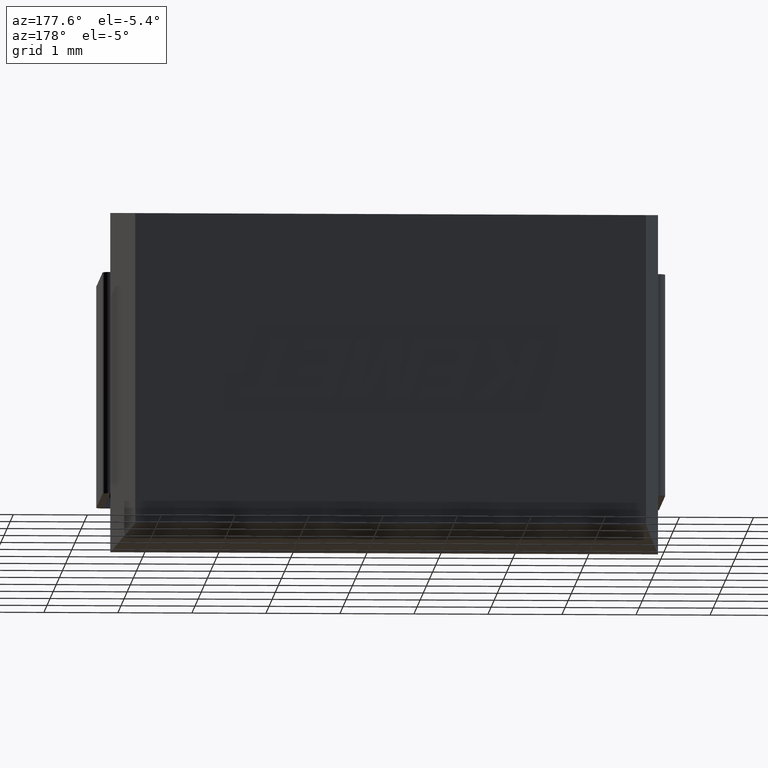
[diagram: clean part render]
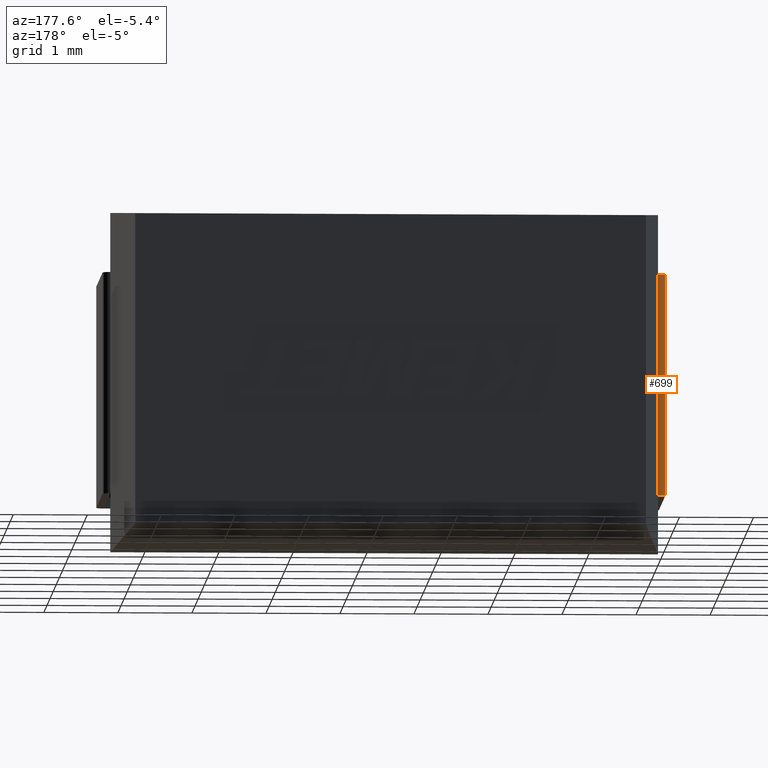
[diagram: same view with one face highlighted and labeled with its STEP entity id]
A machine part, auxiliary view. The second image highlights one B-rep face of the part: STEP entity #699.
In plain terms, the highlighted cylindrical surface (edge-blend (fillet) strip) has radius 0.1 mm, axis along (0, 0, 1).
Its self-contained STEP definition (entity closure, byte-faithful):
#13 = EDGE_CURVE ( 'NONE', #843, #1848, #3395, .T. ) ;
#131 = DIRECTION ( 'NONE',  ( 1.000000000000000000, 0.000000000000000000, 0.000000000000000000 ) ) ;
#149 = CIRCLE ( 'NONE', #2612, 0.1000000000000000056 ) ;
#180 = ORIENTED_EDGE ( 'NONE', *, *, #13, .F. ) ;
#445 = ORIENTED_EDGE ( 'NONE', *, *, #1961, .F. ) ;
#447 = CARTESIAN_POINT ( 'NONE',  ( -0.0009999999999999891788, 1.999999999999997780, -0.7999999999999999334 ) ) ;
#471 = VERTEX_POINT ( 'NONE', #3686 ) ;
#519 = VECTOR ( 'NONE', #4221, 1000.000000000000000 ) ;
#574 = DIRECTION ( 'NONE',  ( 1.000000000000000000, 0.000000000000000000, 0.000000000000000000 ) ) ;
#699 = ADVANCED_FACE ( 'NONE', ( #3306 ), #2287, .T. ) ;
#843 = VERTEX_POINT ( 'NONE', #2170 ) ;
#978 = EDGE_LOOP ( 'NONE', ( #445, #2242, #1910, #180 ) ) ;
#1466 = EDGE_CURVE ( 'NONE', #471, #1522, #3149, .T. ) ;
#1522 = VERTEX_POINT ( 'NONE', #2114 ) ;
#1658 = AXIS2_PLACEMENT_3D ( 'NONE', #447, #3855, #131 ) ;
#1848 = VERTEX_POINT ( 'NONE', #4224 ) ;
#1907 = VECTOR ( 'NONE', #4394, 1000.000000000000000 ) ;
#1910 = ORIENTED_EDGE ( 'NONE', *, *, #2463, .F. ) ;
#1961 = EDGE_CURVE ( 'NONE', #1522, #843, #149, .T. ) ;
#2114 = CARTESIAN_POINT ( 'NONE',  ( -0.1009999999999999926, 1.999999999999997780, -3.799999999999999822 ) ) ;
#2170 = CARTESIAN_POINT ( 'NONE',  ( -0.001000000000000000021, 2.099999999999997868, -3.799999999999999822 ) ) ;
#2242 = ORIENTED_EDGE ( 'NONE', *, *, #1466, .F. ) ;
#2287 = CYLINDRICAL_SURFACE ( 'NONE', #2933, 0.1000000000000000056 ) ;
#2290 = CARTESIAN_POINT ( 'NONE',  ( -0.001000000000000000021, 2.099999999999997868, -3.799999999999999822 ) ) ;
#2323 = CARTESIAN_POINT ( 'NONE',  ( -0.0009999999999999891788, 1.999999999999997780, -3.799999999999999822 ) ) ;
#2463 = EDGE_CURVE ( 'NONE', #1848, #471, #4356, .T. ) ;
#2489 = CARTESIAN_POINT ( 'NONE',  ( -0.1009999999999999926, 1.999999999999997780, -3.799999999999999822 ) ) ;
#2612 = AXIS2_PLACEMENT_3D ( 'NONE', #4246, #4316, #574 ) ;
#2895 = DIRECTION ( 'NONE',  ( 1.000000000000000000, 0.000000000000000000, 0.000000000000000000 ) ) ;
#2933 = AXIS2_PLACEMENT_3D ( 'NONE', #2323, #3931, #2895 ) ;
#3149 = LINE ( 'NONE', #2489, #519 ) ;
#3306 = FACE_OUTER_BOUND ( 'NONE', #978, .T. ) ;
#3395 = LINE ( 'NONE', #2290, #1907 ) ;
#3686 = CARTESIAN_POINT ( 'NONE',  ( -0.1009999999999999926, 1.999999999999997780, -0.7999999999999999334 ) ) ;
#3855 = DIRECTION ( 'NONE',  ( 0.000000000000000000, -0.000000000000000000, 1.000000000000000000 ) ) ;
#3931 = DIRECTION ( 'NONE',  ( 0.000000000000000000, 0.000000000000000000, 1.000000000000000000 ) ) ;
#4221 = DIRECTION ( 'NONE',  ( -0.000000000000000000, -0.000000000000000000, -1.000000000000000000 ) ) ;
#4224 = CARTESIAN_POINT ( 'NONE',  ( -0.001000000000000000021, 2.099999999999997868, -0.7999999999999999334 ) ) ;
#4246 = CARTESIAN_POINT ( 'NONE',  ( -0.0009999999999999891788, 1.999999999999997780, -3.799999999999999822 ) ) ;
#4316 = DIRECTION ( 'NONE',  ( -0.000000000000000000, 0.000000000000000000, -1.000000000000000000 ) ) ;
#4356 = CIRCLE ( 'NONE', #1658, 0.1000000000000000056 ) ;
#4394 = DIRECTION ( 'NONE',  ( 0.000000000000000000, 0.000000000000000000, 1.000000000000000000 ) ) ;